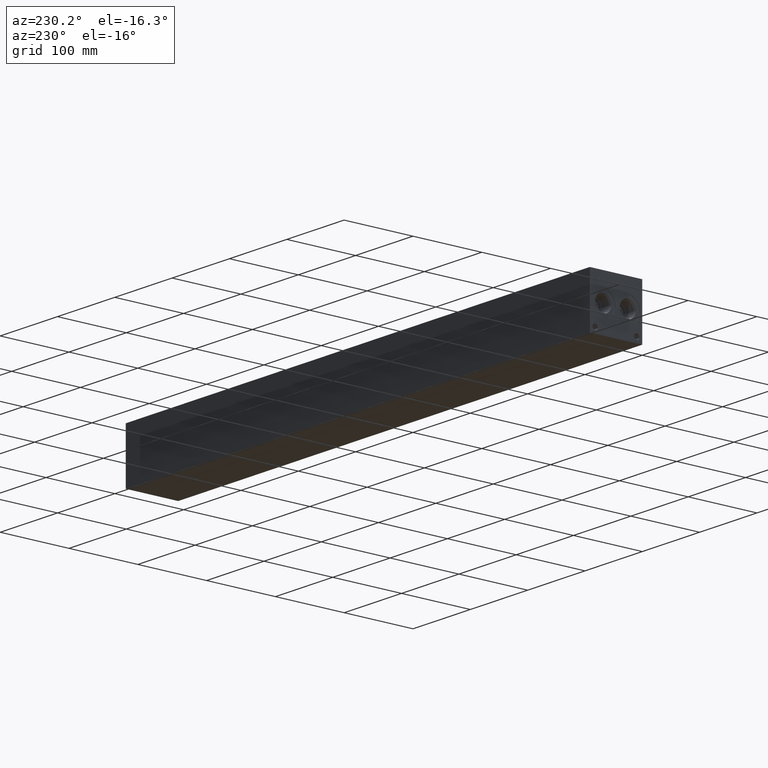
[diagram: clean part render]
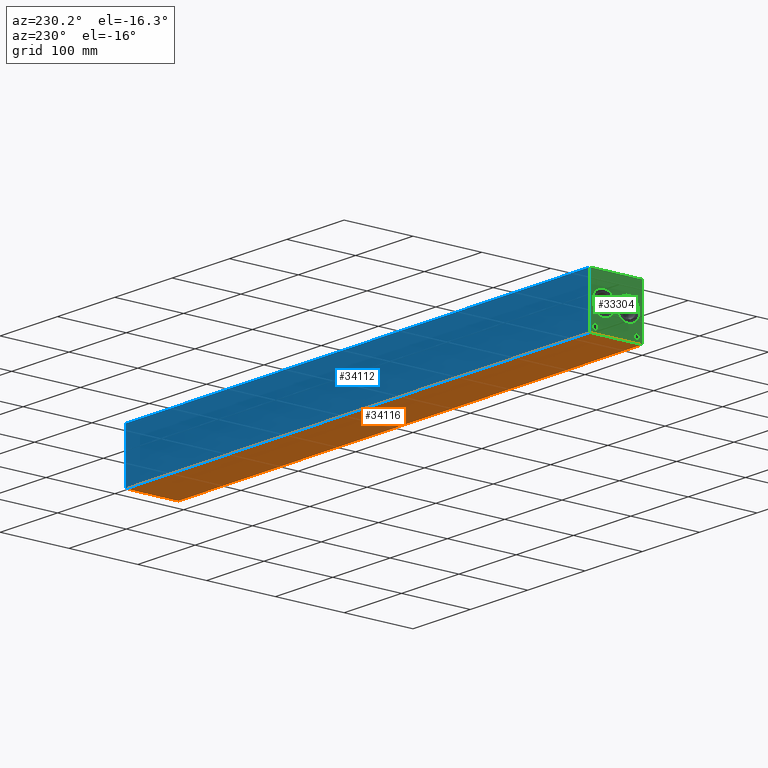
[diagram: same view with three faces highlighted in distinct colors, each labeled with its STEP entity id]
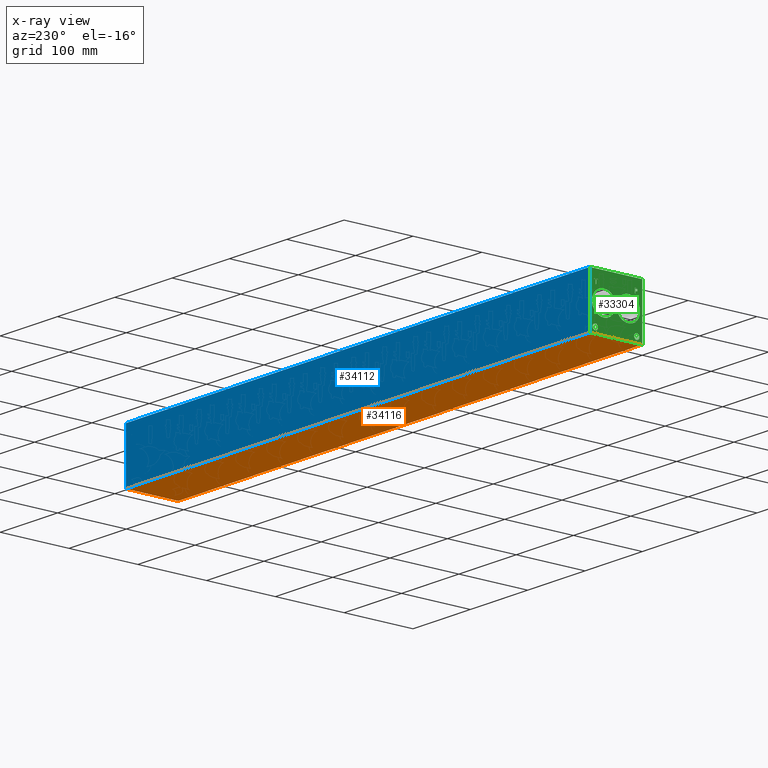
[diagram: x-ray of the same camera — body ghosted, the three highlighted faces saturated]
A machine part, auxiliary view with three faces highlighted in distinct colors.
The next image is the same camera in x-ray (body ghosted, the three faces saturated) — at least one of them is partly hidden behind the body in this view.
Their STEP definitions:

[orange] entity #34116 — the highlighted planar face has unit normal (0, 0, 1).
#5319=FACE_OUTER_BOUND('',#7537,.T.);
#7537=EDGE_LOOP('',(#30562,#30563,#30564,#30565));
#7571=LINE('',#45529,#10247);
#9463=LINE('',#55114,#12139);
#9522=LINE('',#55386,#12198);
#10212=LINE('',#59769,#12888);
#10247=VECTOR('',#37075,10.);
#12139=VECTOR('',#40335,10.);
#12198=VECTOR('',#40448,10.);
#12888=VECTOR('',#45448,10.);
#12912=VERTEX_POINT('',#45527);
#12913=VERTEX_POINT('',#45528);
#14674=VERTEX_POINT('',#55113);
#14732=VERTEX_POINT('',#55385);
#16304=EDGE_CURVE('',#12912,#12913,#7571,.T.);
#18914=EDGE_CURVE('',#12913,#14674,#9463,.T.);
#18997=EDGE_CURVE('',#14732,#12912,#9522,.T.);
#21034=EDGE_CURVE('',#14674,#14732,#10212,.T.);
#30562=ORIENTED_EDGE('',*,*,#16304,.F.);
#30563=ORIENTED_EDGE('',*,*,#18997,.F.);
#30564=ORIENTED_EDGE('',*,*,#21034,.F.);
#30565=ORIENTED_EDGE('',*,*,#18914,.F.);
#31368=PLANE('',#37013);
#34116=ADVANCED_FACE('',(#5319),#31368,.F.);
#37013=AXIS2_PLACEMENT_3D('',#59774,#45456,#45457);
#37075=DIRECTION('',(1.,0.,0.));
#40335=DIRECTION('',(0.,1.,0.));
#40448=DIRECTION('',(0.,-1.,0.));
#45448=DIRECTION('',(-1.,0.,0.));
#45456=DIRECTION('center_axis',(0.,0.,1.));
#45457=DIRECTION('ref_axis',(1.,0.,0.));
#45527=CARTESIAN_POINT('',(0.,0.,0.));
#45528=CARTESIAN_POINT('',(809.625,0.,0.));
#45529=CARTESIAN_POINT('',(0.,0.,0.));
#55113=CARTESIAN_POINT('',(809.625,76.2,0.));
#55114=CARTESIAN_POINT('',(809.625,0.,0.));
#55385=CARTESIAN_POINT('',(0.,76.2,0.));
#55386=CARTESIAN_POINT('',(0.,76.2,0.));
#59769=CARTESIAN_POINT('',(809.625,76.2,0.));
#59774=CARTESIAN_POINT('Origin',(404.8125,38.1,0.));

[blue] entity #34112 — the highlighted planar face has unit normal (0, 1, 0).
#5315=FACE_OUTER_BOUND('',#7398,.T.);
#7398=EDGE_LOOP('',(#30274,#30275,#30276,#30277));
#9464=LINE('',#55116,#12140);
#9524=LINE('',#55389,#12200);
#10212=LINE('',#59769,#12888);
#10213=LINE('',#59770,#12889);
#12140=VECTOR('',#40336,10.);
#12200=VECTOR('',#40450,10.);
#12888=VECTOR('',#45448,10.);
#12889=VECTOR('',#45449,10.);
#14674=VERTEX_POINT('',#55113);
#14675=VERTEX_POINT('',#55115);
#14732=VERTEX_POINT('',#55385);
#14733=VERTEX_POINT('',#55387);
#18915=EDGE_CURVE('',#14674,#14675,#9464,.T.);
#18999=EDGE_CURVE('',#14732,#14733,#9524,.T.);
#21034=EDGE_CURVE('',#14674,#14732,#10212,.T.);
#21035=EDGE_CURVE('',#14675,#14733,#10213,.T.);
#30274=ORIENTED_EDGE('',*,*,#21034,.T.);
#30275=ORIENTED_EDGE('',*,*,#18999,.T.);
#30276=ORIENTED_EDGE('',*,*,#21035,.F.);
#30277=ORIENTED_EDGE('',*,*,#18915,.F.);
#31364=PLANE('',#37009);
#34112=ADVANCED_FACE('',(#5315),#31364,.T.);
#37009=AXIS2_PLACEMENT_3D('',#59768,#45446,#45447);
#40336=DIRECTION('',(0.,0.,1.));
#40450=DIRECTION('',(0.,0.,1.));
#45446=DIRECTION('center_axis',(0.,1.,0.));
#45447=DIRECTION('ref_axis',(-1.,0.,0.));
#45448=DIRECTION('',(-1.,0.,0.));
#45449=DIRECTION('',(-1.,0.,0.));
#55113=CARTESIAN_POINT('',(809.625,76.2,0.));
#55115=CARTESIAN_POINT('',(809.625,76.2,76.2));
#55116=CARTESIAN_POINT('',(809.625,76.2,0.));
#55385=CARTESIAN_POINT('',(0.,76.2,0.));
#55387=CARTESIAN_POINT('',(0.,76.2,76.2));
#55389=CARTESIAN_POINT('',(0.,76.2,0.));
#59768=CARTESIAN_POINT('Origin',(809.625,76.2,0.));
#59769=CARTESIAN_POINT('',(809.625,76.2,0.));
#59770=CARTESIAN_POINT('',(809.625,76.2,76.2));

[green] entity #33304 — the highlighted planar face has unit normal (-1, 0, 0).
#1083=CIRCLE('',#34855,17.0688);
#1084=CIRCLE('',#34856,17.0688);
#1085=CIRCLE('',#34857,17.0688);
#1086=CIRCLE('',#34858,17.0688);
#1087=CIRCLE('',#34859,3.9624);
#1088=CIRCLE('',#34860,3.9624);
#1089=CIRCLE('',#34861,3.9624);
#1090=CIRCLE('',#34862,3.9624);
#3094=B_SPLINE_CURVE_WITH_KNOTS('',2,(#55287,#55288,#55289,#55290),
 .UNSPECIFIED.,.F.,.F.,(3,1,3),(0.,1.,2.),.UNSPECIFIED.);
#3096=B_SPLINE_CURVE_WITH_KNOTS('',2,(#55308,#55309,#55310,#55311),
 .UNSPECIFIED.,.F.,.F.,(3,1,3),(0.,1.,2.),.UNSPECIFIED.);
#3098=B_SPLINE_CURVE_WITH_KNOTS('',2,(#55357,#55358,#55359,#55360),
 .UNSPECIFIED.,.F.,.F.,(3,1,3),(0.,1.,2.),.UNSPECIFIED.);
#3100=B_SPLINE_CURVE_WITH_KNOTS('',2,(#55375,#55376,#55377,#55378),
 .UNSPECIFIED.,.F.,.F.,(3,1,3),(0.,1.,2.),.UNSPECIFIED.);
#3243=FACE_BOUND('',#6451,.T.);
#3244=FACE_BOUND('',#6452,.T.);
#3245=FACE_BOUND('',#6453,.T.);
#3246=FACE_BOUND('',#6454,.T.);
#3247=FACE_BOUND('',#6455,.T.);
#3248=FACE_BOUND('',#6456,.T.);
#4507=FACE_OUTER_BOUND('',#6450,.T.);
#6450=EDGE_LOOP('',(#26386,#26387,#26388,#26389));
#6451=EDGE_LOOP('',(#26390,#26391));
#6452=EDGE_LOOP('',(#26392,#26393));
#6453=EDGE_LOOP('',(#26394,#26395));
#6454=EDGE_LOOP('',(#26396,#26397));
#6455=EDGE_LOOP('',(#26398,#26399,#26400,#26401,#26402,#26403,#26404,#26405));
#6456=EDGE_LOOP('',(#26406,#26407,#26408,#26409,#26410,#26411,#26412,#26413,
#26414));
#7574=LINE('',#45534,#10250);
#9506=LINE('',#55320,#12182);
#9509=LINE('',#55326,#12185);
#9512=LINE('',#55332,#12188);
#9515=LINE('',#55338,#12191);
#9518=LINE('',#55344,#12194);
#9522=LINE('',#55386,#12198);
#9523=LINE('',#55388,#12199);
#9524=LINE('',#55389,#12200);
#9525=LINE('',#55408,#12201);
#9526=LINE('',#55410,#12202);
#9527=LINE('',#55412,#12203);
#9528=LINE('',#55414,#12204);
#9529=LINE('',#55416,#12205);
#9530=LINE('',#55418,#12206);
#9531=LINE('',#55420,#12207);
#9532=LINE('',#55421,#12208);
#10250=VECTOR('',#37078,10.);
#12182=VECTOR('',#40420,10.);
#12185=VECTOR('',#40425,10.);
#12188=VECTOR('',#40430,10.);
#12191=VECTOR('',#40435,10.);
#12194=VECTOR('',#40440,10.);
#12198=VECTOR('',#40448,10.);
#12199=VECTOR('',#40449,10.);
#12200=VECTOR('',#40450,10.);
#12201=VECTOR('',#40467,10.);
#12202=VECTOR('',#40468,10.);
#12203=VECTOR('',#40469,10.);
#12204=VECTOR('',#40470,10.);
#12205=VECTOR('',#40471,10.);
#12206=VECTOR('',#40472,10.);
#12207=VECTOR('',#40473,10.);
#12208=VECTOR('',#40474,10.);
#12912=VERTEX_POINT('',#45527);
#12915=VERTEX_POINT('',#45532);
#14714=VERTEX_POINT('',#55285);
#14715=VERTEX_POINT('',#55286);
#14718=VERTEX_POINT('',#55307);
#14720=VERTEX_POINT('',#55319);
#14722=VERTEX_POINT('',#55325);
#14724=VERTEX_POINT('',#55331);
#14726=VERTEX_POINT('',#55337);
#14728=VERTEX_POINT('',#55343);
#14730=VERTEX_POINT('',#55356);
#14732=VERTEX_POINT('',#55385);
#14733=VERTEX_POINT('',#55387);
#14734=VERTEX_POINT('',#55390);
#14735=VERTEX_POINT('',#55391);
#14736=VERTEX_POINT('',#55394);
#14737=VERTEX_POINT('',#55395);
#14738=VERTEX_POINT('',#55398);
#14739=VERTEX_POINT('',#55399);
#14740=VERTEX_POINT('',#55402);
#14741=VERTEX_POINT('',#55403);
#14742=VERTEX_POINT('',#55406);
#14743=VERTEX_POINT('',#55407);
#14744=VERTEX_POINT('',#55409);
#14745=VERTEX_POINT('',#55411);
#14746=VERTEX_POINT('',#55413);
#14747=VERTEX_POINT('',#55415);
#14748=VERTEX_POINT('',#55417);
#14749=VERTEX_POINT('',#55419);
#16307=EDGE_CURVE('',#12912,#12915,#7574,.T.);
#18970=EDGE_CURVE('',#14714,#14715,#3094,.T.);
#18974=EDGE_CURVE('',#14718,#14714,#3096,.T.);
#18977=EDGE_CURVE('',#14720,#14718,#9506,.T.);
#18980=EDGE_CURVE('',#14722,#14720,#9509,.T.);
#18983=EDGE_CURVE('',#14724,#14722,#9512,.T.);
#18986=EDGE_CURVE('',#14726,#14724,#9515,.T.);
#18989=EDGE_CURVE('',#14728,#14726,#9518,.T.);
#18992=EDGE_CURVE('',#14730,#14728,#3098,.T.);
#18995=EDGE_CURVE('',#14715,#14730,#3100,.T.);
#18997=EDGE_CURVE('',#14732,#12912,#9522,.T.);
#18998=EDGE_CURVE('',#14733,#12915,#9523,.T.);
#18999=EDGE_CURVE('',#14732,#14733,#9524,.T.);
#19000=EDGE_CURVE('',#14734,#14735,#1083,.T.);
#19001=EDGE_CURVE('',#14735,#14734,#1084,.T.);
#19002=EDGE_CURVE('',#14736,#14737,#1085,.T.);
#19003=EDGE_CURVE('',#14737,#14736,#1086,.T.);
#19004=EDGE_CURVE('',#14738,#14739,#1087,.T.);
#19005=EDGE_CURVE('',#14739,#14738,#1088,.T.);
#19006=EDGE_CURVE('',#14740,#14741,#1089,.T.);
#19007=EDGE_CURVE('',#14741,#14740,#1090,.T.);
#19008=EDGE_CURVE('',#14742,#14743,#9525,.T.);
#19009=EDGE_CURVE('',#14743,#14744,#9526,.T.);
#19010=EDGE_CURVE('',#14744,#14745,#9527,.T.);
#19011=EDGE_CURVE('',#14745,#14746,#9528,.T.);
#19012=EDGE_CURVE('',#14746,#14747,#9529,.T.);
#19013=EDGE_CURVE('',#14747,#14748,#9530,.T.);
#19014=EDGE_CURVE('',#14748,#14749,#9531,.T.);
#19015=EDGE_CURVE('',#14749,#14742,#9532,.T.);
#26386=ORIENTED_EDGE('',*,*,#18997,.T.);
#26387=ORIENTED_EDGE('',*,*,#16307,.T.);
#26388=ORIENTED_EDGE('',*,*,#18998,.F.);
#26389=ORIENTED_EDGE('',*,*,#18999,.F.);
#26390=ORIENTED_EDGE('',*,*,#19000,.T.);
#26391=ORIENTED_EDGE('',*,*,#19001,.T.);
#26392=ORIENTED_EDGE('',*,*,#19002,.T.);
#26393=ORIENTED_EDGE('',*,*,#19003,.T.);
#26394=ORIENTED_EDGE('',*,*,#19004,.T.);
#26395=ORIENTED_EDGE('',*,*,#19005,.T.);
#26396=ORIENTED_EDGE('',*,*,#19006,.T.);
#26397=ORIENTED_EDGE('',*,*,#19007,.T.);
#26398=ORIENTED_EDGE('',*,*,#19008,.T.);
#26399=ORIENTED_EDGE('',*,*,#19009,.T.);
#26400=ORIENTED_EDGE('',*,*,#19010,.T.);
#26401=ORIENTED_EDGE('',*,*,#19011,.T.);
#26402=ORIENTED_EDGE('',*,*,#19012,.T.);
#26403=ORIENTED_EDGE('',*,*,#19013,.T.);
#26404=ORIENTED_EDGE('',*,*,#19014,.T.);
#26405=ORIENTED_EDGE('',*,*,#19015,.T.);
#26406=ORIENTED_EDGE('',*,*,#18970,.T.);
#26407=ORIENTED_EDGE('',*,*,#18995,.T.);
#26408=ORIENTED_EDGE('',*,*,#18992,.T.);
#26409=ORIENTED_EDGE('',*,*,#18989,.T.);
#26410=ORIENTED_EDGE('',*,*,#18986,.T.);
#26411=ORIENTED_EDGE('',*,*,#18983,.T.);
#26412=ORIENTED_EDGE('',*,*,#18980,.T.);
#26413=ORIENTED_EDGE('',*,*,#18977,.T.);
#26414=ORIENTED_EDGE('',*,*,#18974,.T.);
#31219=PLANE('',#34854);
#33304=ADVANCED_FACE('',(#4507,#3243,#3244,#3245,#3246,#3247,#3248),#31219,
 .T.);
#34854=AXIS2_PLACEMENT_3D('',#55384,#40446,#40447);
#34855=AXIS2_PLACEMENT_3D('',#55392,#40451,#40452);
#34856=AXIS2_PLACEMENT_3D('',#55393,#40453,#40454);
#34857=AXIS2_PLACEMENT_3D('',#55396,#40455,#40456);
#34858=AXIS2_PLACEMENT_3D('',#55397,#40457,#40458);
#34859=AXIS2_PLACEMENT_3D('',#55400,#40459,#40460);
#34860=AXIS2_PLACEMENT_3D('',#55401,#40461,#40462);
#34861=AXIS2_PLACEMENT_3D('',#55404,#40463,#40464);
#34862=AXIS2_PLACEMENT_3D('',#55405,#40465,#40466);
#37078=DIRECTION('',(0.,0.,1.));
#40420=DIRECTION('',(0.,-1.,0.));
#40425=DIRECTION('',(0.,-3.14708893596577E-15,1.));
#40430=DIRECTION('',(0.,1.,1.0524411238433E-14));
#40435=DIRECTION('',(0.,2.8141360485375E-15,-1.));
#40440=DIRECTION('',(0.,1.,1.24172909575755E-14));
#40446=DIRECTION('center_axis',(-1.,0.,0.));
#40447=DIRECTION('ref_axis',(0.,-1.,0.));
#40448=DIRECTION('',(0.,-1.,0.));
#40449=DIRECTION('',(0.,-1.,0.));
#40450=DIRECTION('',(0.,0.,1.));
#40451=DIRECTION('center_axis',(1.,0.,0.));
#40452=DIRECTION('ref_axis',(0.,0.,1.));
#40453=DIRECTION('center_axis',(1.,0.,0.));
#40454=DIRECTION('ref_axis',(0.,0.,1.));
#40455=DIRECTION('center_axis',(1.,0.,0.));
#40456=DIRECTION('ref_axis',(0.,1.,0.));
#40457=DIRECTION('center_axis',(1.,0.,0.));
#40458=DIRECTION('ref_axis',(0.,1.,0.));
#40459=DIRECTION('center_axis',(1.,0.,0.));
#40460=DIRECTION('ref_axis',(0.,1.,0.));
#40461=DIRECTION('center_axis',(1.,0.,0.));
#40462=DIRECTION('ref_axis',(0.,1.,0.));
#40463=DIRECTION('center_axis',(1.,0.,0.));
#40464=DIRECTION('ref_axis',(0.,1.,0.));
#40465=DIRECTION('center_axis',(1.,0.,0.));
#40466=DIRECTION('ref_axis',(0.,1.,0.));
#40467=DIRECTION('',(0.,1.,0.));
#40468=DIRECTION('',(0.,-3.17280044688052E-15,1.));
#40469=DIRECTION('',(0.,1.,0.));
#40470=DIRECTION('',(0.,0.,1.));
#40471=DIRECTION('',(0.,-1.,-3.47984565141735E-15));
#40472=DIRECTION('',(0.,0.,-1.));
#40473=DIRECTION('',(0.,1.,8.33818088455559E-15));
#40474=DIRECTION('',(0.,3.17280044688052E-15,-1.));
#45527=CARTESIAN_POINT('',(0.,0.,0.));
#45532=CARTESIAN_POINT('',(0.,0.,76.2));
#45534=CARTESIAN_POINT('',(0.,0.,0.));
#55285=CARTESIAN_POINT('',(0.,7.45323279764059,63.8657681439707));
#55286=CARTESIAN_POINT('',(0.,6.696790345468,62.3477373726039));
#55287=CARTESIAN_POINT('Ctrl Pts',(0.,7.45323279764059,63.8657681439707));
#55288=CARTESIAN_POINT('Ctrl Pts',(0.,7.09816797315141,63.6239123939564));
#55289=CARTESIAN_POINT('Ctrl Pts',(0.,6.69679034546799,62.8777616758269));
#55290=CARTESIAN_POINT('Ctrl Pts',(0.,6.696790345468,62.3477373726039));
#55307=CARTESIAN_POINT('',(0.,9.11534784561167,64.2619999046326));
#55308=CARTESIAN_POINT('Ctrl Pts',(0.,9.11534784561167,64.2619999046326));
#55309=CARTESIAN_POINT('Ctrl Pts',(0.,8.54930247323762,64.2619999046326));
#55310=CARTESIAN_POINT('Ctrl Pts',(0.,7.75683895191395,64.0767486918556));
#55311=CARTESIAN_POINT('Ctrl Pts',(0.,7.45323279764059,63.8657681439707));
#55319=CARTESIAN_POINT('',(0.,10.7105666223022,64.2619999046326));
#55320=CARTESIAN_POINT('',(0.,43.4552833111511,64.2619999046326));
#55325=CARTESIAN_POINT('',(0.,10.7105666223022,57.912));
#55326=CARTESIAN_POINT('',(0.,10.7105666223023,28.9559999999999));
#55331=CARTESIAN_POINT('',(0.,9.86664443076271,57.912));
#55332=CARTESIAN_POINT('',(0.,43.0333222153811,57.9120000000004));
#55337=CARTESIAN_POINT('',(0.,9.8666444307627,60.2790988299279));
#55338=CARTESIAN_POINT('',(0.,9.86664443076279,30.1395494149638));
#55343=CARTESIAN_POINT('',(0.,9.15136891476276,60.2790988299279));
#55344=CARTESIAN_POINT('',(0.,42.675684457381,60.2790988299283));
#55356=CARTESIAN_POINT('',(0.,7.25254398379889,60.9377698086904));
#55357=CARTESIAN_POINT('Ctrl Pts',(0.,7.25254398379889,60.9377698086904));
#55358=CARTESIAN_POINT('Ctrl Pts',(0.,7.58187947318016,60.6135801863307));
#55359=CARTESIAN_POINT('Ctrl Pts',(0.,8.4721144679139,60.2790988299279));
#55360=CARTESIAN_POINT('Ctrl Pts',(0.,9.15136891476276,60.2790988299279));
#55375=CARTESIAN_POINT('Ctrl Pts',(0.,6.696790345468,62.3477373726039));
#55376=CARTESIAN_POINT('Ctrl Pts',(0.,6.696790345468,61.9360680108774));
#55377=CARTESIAN_POINT('Ctrl Pts',(0.,6.99010476569819,61.1950631597695));
#55378=CARTESIAN_POINT('Ctrl Pts',(0.,7.25254398379889,60.9377698086904));
#55384=CARTESIAN_POINT('Origin',(0.,76.2,0.));
#55385=CARTESIAN_POINT('',(0.,76.2,0.));
#55386=CARTESIAN_POINT('',(0.,76.2,0.));
#55387=CARTESIAN_POINT('',(0.,76.2,76.2));
#55388=CARTESIAN_POINT('',(0.,76.2,76.2));
#55389=CARTESIAN_POINT('',(0.,76.2,0.));
#55390=CARTESIAN_POINT('',(0.,55.9562,55.1688));
#55391=CARTESIAN_POINT('',(0.,55.9562,21.0312));
#55392=CARTESIAN_POINT('Origin',(0.,55.9562,38.1));
#55393=CARTESIAN_POINT('Origin',(0.,55.9562,38.1));
#55394=CARTESIAN_POINT('',(0.,37.3126,38.1));
#55395=CARTESIAN_POINT('',(0.,3.175,38.1));
#55396=CARTESIAN_POINT('Origin',(0.,20.2438,38.1));
#55397=CARTESIAN_POINT('Origin',(0.,20.2438,38.1));
#55398=CARTESIAN_POINT('',(0.,72.2376,7.92480000000001));
#55399=CARTESIAN_POINT('',(0.,64.3128,7.92480000000001));
#55400=CARTESIAN_POINT('Origin',(0.,68.2752,7.92480000000001));
#55401=CARTESIAN_POINT('Origin',(0.,68.2752,7.92480000000001));
#55402=CARTESIAN_POINT('',(0.,11.8872,7.92480000000001));
#55403=CARTESIAN_POINT('',(0.,3.9624,7.92480000000001));
#55404=CARTESIAN_POINT('Origin',(0.,7.9248,7.92480000000001));
#55405=CARTESIAN_POINT('Origin',(0.,7.9248,7.92480000000001));
#55406=CARTESIAN_POINT('',(0.,66.957034728547,57.912));
#55407=CARTESIAN_POINT('',(0.,67.8009569200865,57.912));
#55408=CARTESIAN_POINT('',(0.,71.5785173642735,57.912));
#55409=CARTESIAN_POINT('',(0.,67.8009569200865,63.5107033194816));
#55410=CARTESIAN_POINT('',(0.,67.8009569200866,28.956));
#55411=CARTESIAN_POINT('',(0.,69.9313458670215,63.5107033194816));
#55412=CARTESIAN_POINT('',(0.,72.0004784600432,63.5107033194816));
#55413=CARTESIAN_POINT('',(0.,69.9313458670215,64.2619999046326));
#55414=CARTESIAN_POINT('',(0.,69.9313458670215,31.7553516597408));
#55415=CARTESIAN_POINT('',(0.,64.8266457816119,64.2619999046326));
#55416=CARTESIAN_POINT('',(0.,73.0656729335107,64.2619999046326));
#55417=CARTESIAN_POINT('',(0.,64.8266457816119,63.5107033194815));
#55418=CARTESIAN_POINT('',(0.,64.8266457816119,32.1309999523163));
#55419=CARTESIAN_POINT('',(0.,66.957034728547,63.5107033194816));
#55420=CARTESIAN_POINT('',(0.,70.5133228908057,63.5107033194816));
#55421=CARTESIAN_POINT('',(0.,66.9570347285471,31.7553516597408));